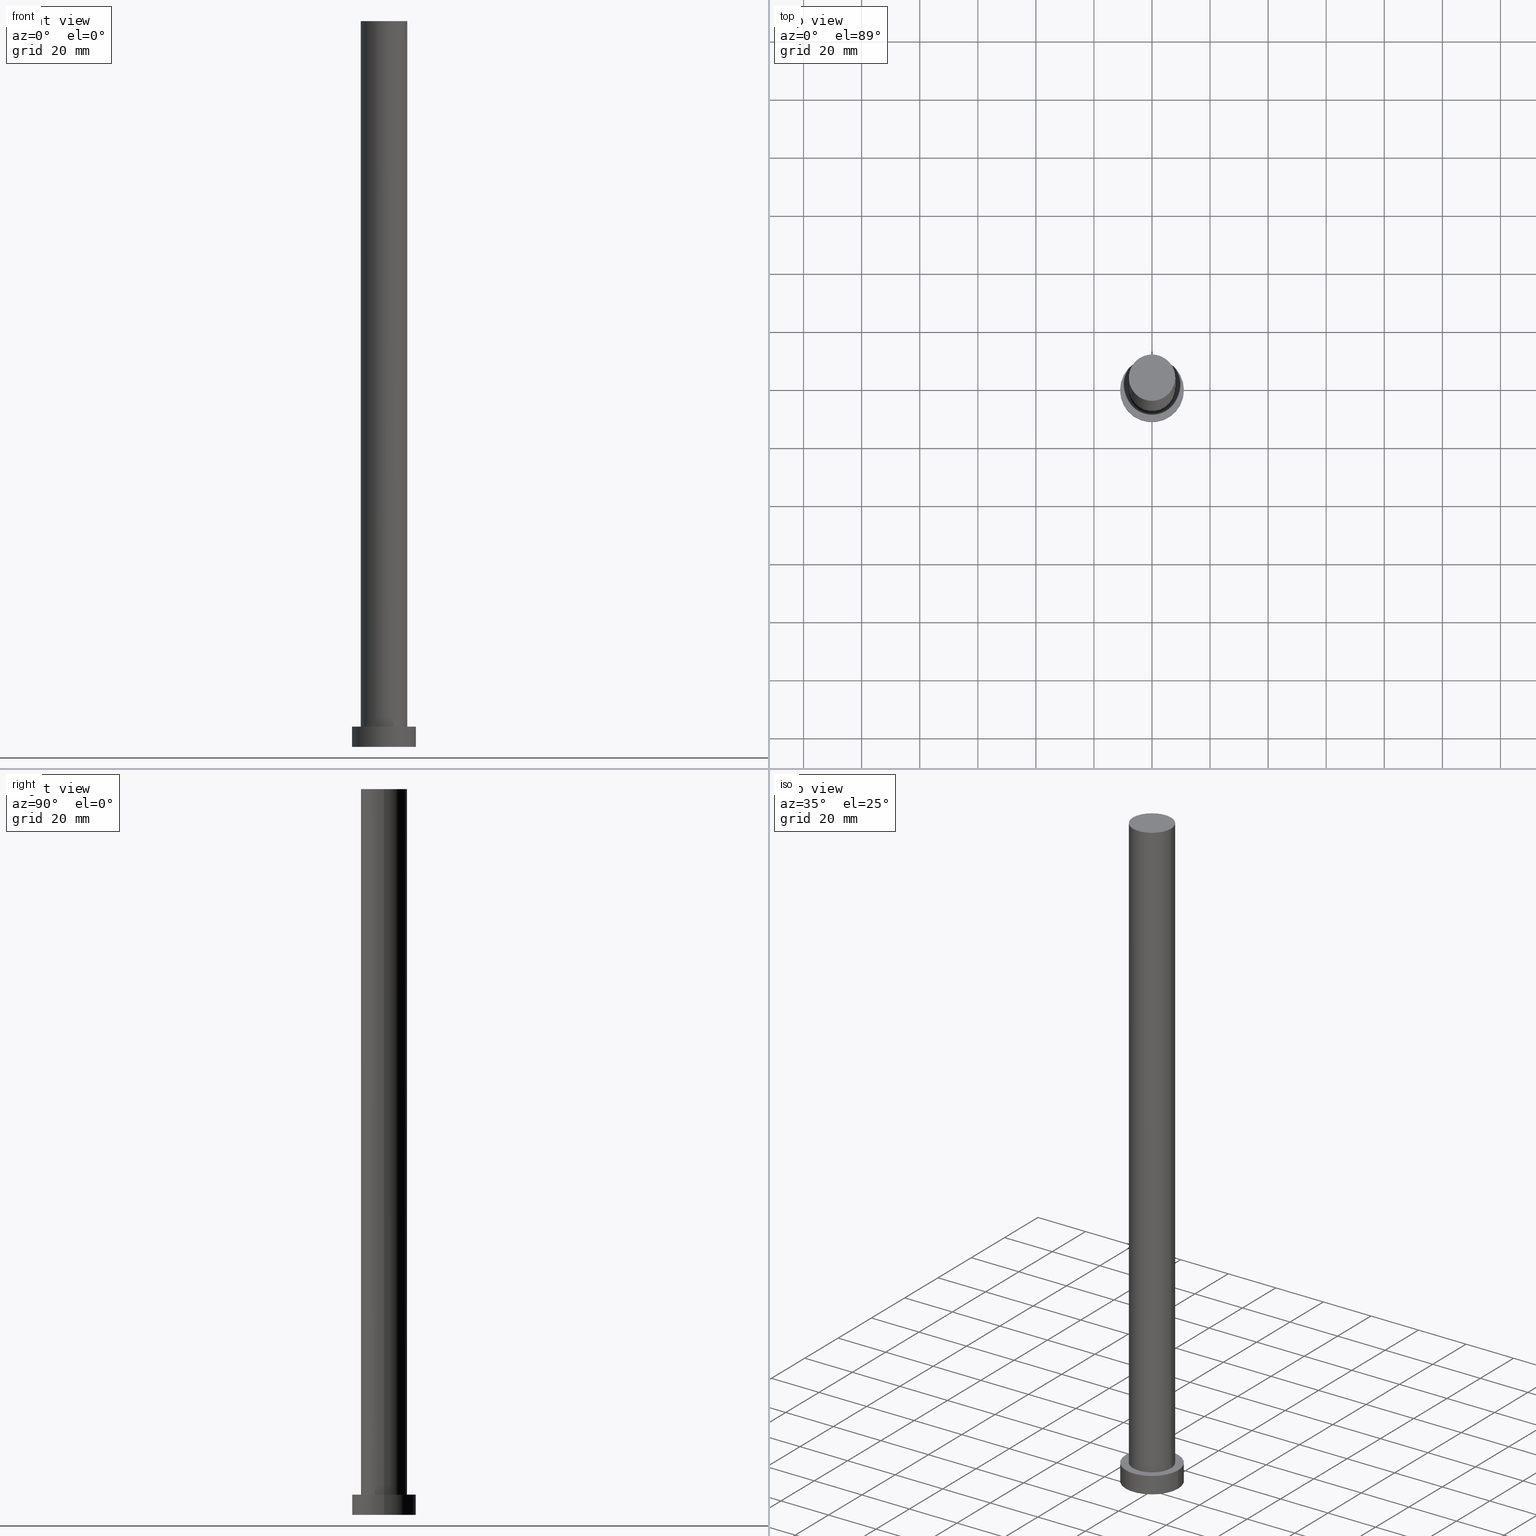
[diagram: canonical four-view strip — front | top / right | iso, engineering-drawing reading convention]
A machine part, canonical four-view strip (front | top / right | iso — engineering-drawing reading convention). The complete STEP part file that produces these views, byte-faithful:
ISO-10303-21;
HEADER;
FILE_DESCRIPTION (( 'STEP AP203' ),
    '1' );
FILE_NAME ('07d5.STEP',
    '2023-02-13T09:15:05',
    ( '' ),
    ( '' ),
    'SwSTEP 2.0',
    'SolidWorks 2019',
    '' );
FILE_SCHEMA (( 'CONFIG_CONTROL_DESIGN' ));
ENDSEC;

DATA;
#1 = PERSON_AND_ORGANIZATION ( #143, #175 ) ;
#2 = EDGE_CURVE ( 'NONE', #45, #119, #109, .T. ) ;
#3 = ORIENTED_EDGE ( 'NONE', *, *, #113, .T. ) ;
#4 = COORDINATED_UNIVERSAL_TIME_OFFSET ( 1, 0, .AHEAD. ) ;
#5 = ORIENTED_EDGE ( 'NONE', *, *, #33, .F. ) ;
#6 = COORDINATED_UNIVERSAL_TIME_OFFSET ( 1, 0, .AHEAD. ) ;
#7 = CIRCLE ( 'NONE', #255, 11.00000000000000000 ) ;
#8 = CARTESIAN_POINT ( 'NONE',  ( 0.000000000000000000, 0.000000000000000000, 0.000000000000000000 ) ) ;
#9 = CALENDAR_DATE ( 2023, 13, 2 ) ;
#10 = DIRECTION ( 'NONE',  ( 0.000000000000000000, 0.000000000000000000, 1.000000000000000000 ) ) ;
#11 = EDGE_LOOP ( 'NONE', ( #5, #38, #165, #68 ) ) ;
#12 = EDGE_CURVE ( 'NONE', #243, #119, #59, .T. ) ;
#13 = AXIS2_PLACEMENT_3D ( 'NONE', #149, #10, #29 ) ;
#14 = APPROVAL_DATE_TIME ( #56, #16 ) ;
#15 = CIRCLE ( 'NONE', #84, 11.00000000000000000 ) ;
#16 = APPROVAL ( #135, 'NEUR�EN�' ) ;
#17 = CARTESIAN_POINT ( 'NONE',  ( 8.000000000000000000, 9.797174393178825657E-16, 7.000000000000000000 ) ) ;
#18 = VERTEX_POINT ( 'NONE', #191 ) ;
#19 = DIRECTION ( 'NONE',  ( 0.000000000000000000, 0.000000000000000000, 1.000000000000000000 ) ) ;
#20 = DESIGN_CONTEXT ( 'detailed design', #78, 'design' ) ;
#21 = VERTEX_POINT ( 'NONE', #207 ) ;
#22 = PRODUCT_DEFINITION_FORMATION_WITH_SPECIFIED_SOURCE ( 'LIBOVOLN�', '', #85, .NOT_KNOWN. ) ;
#23 = CARTESIAN_POINT ( 'NONE',  ( -8.000000000000000000, 0.000000000000000000, 250.0000000000000000 ) ) ;
#24 = ORIENTED_EDGE ( 'NONE', *, *, #36, .T. ) ;
#25 = CYLINDRICAL_SURFACE ( 'NONE', #116, 8.000000000000000000 ) ;
#26 = DATE_AND_TIME ( #242, #152 ) ;
#27 = VERTEX_POINT ( 'NONE', #224 ) ;
#28 = EDGE_LOOP ( 'NONE', ( #3, #134 ) ) ;
#29 = DIRECTION ( 'NONE',  ( 1.000000000000000000, 0.000000000000000000, -0.000000000000000000 ) ) ;
#30 = AXIS2_PLACEMENT_3D ( 'NONE', #31, #51, #226 ) ;
#31 = CARTESIAN_POINT ( 'NONE',  ( 0.000000000000000000, 0.000000000000000000, 0.000000000000000000 ) ) ;
#32 = ORIENTED_EDGE ( 'NONE', *, *, #178, .F. ) ;
#33 = EDGE_CURVE ( 'NONE', #27, #45, #126, .T. ) ;
#34 = APPROVAL ( #221, 'NEUR�EN�' ) ;
#35 = DIRECTION ( 'NONE',  ( -0.000000000000000000, -0.000000000000000000, -1.000000000000000000 ) ) ;
#36 = EDGE_CURVE ( 'NONE', #45, #27, #15, .T. ) ;
#37 = DIRECTION ( 'NONE',  ( 0.000000000000000000, 0.000000000000000000, 1.000000000000000000 ) ) ;
#38 = ORIENTED_EDGE ( 'NONE', *, *, #131, .T. ) ;
#39 = CARTESIAN_POINT ( 'NONE',  ( 0.000000000000000000, 0.000000000000000000, 250.0000000000000000 ) ) ;
#40 = FACE_OUTER_BOUND ( 'NONE', #200, .T. ) ;
#41 = ORIENTED_EDGE ( 'NONE', *, *, #2, .T. ) ;
#42 = FACE_OUTER_BOUND ( 'NONE', #167, .T. ) ;
#43 = ADVANCED_FACE ( 'NONE', ( #171 ), #148, .F. ) ;
#44 = CARTESIAN_POINT ( 'NONE',  ( 11.00000000000000000, 1.347111479062088405E-15, 0.000000000000000000 ) ) ;
#45 = VERTEX_POINT ( 'NONE', #92 ) ;
#46 = AXIS2_PLACEMENT_3D ( 'NONE', #238, #236, #64 ) ;
#47 = DIRECTION ( 'NONE',  ( 0.000000000000000000, 0.000000000000000000, 1.000000000000000000 ) ) ;
#48 = PERSON_AND_ORGANIZATION ( #143, #175 ) ;
#49 = DIRECTION ( 'NONE',  ( 1.000000000000000000, 0.000000000000000000, 0.000000000000000000 ) ) ;
#50 = APPLICATION_CONTEXT ( 'configuration controlled 3d designs of mechanical parts and assemblies' ) ;
#51 = DIRECTION ( 'NONE',  ( 0.000000000000000000, 0.000000000000000000, 1.000000000000000000 ) ) ;
#52 = EDGE_LOOP ( 'NONE', ( #107, #173, #41, #94 ) ) ;
#53 = PERSON_AND_ORGANIZATION_ROLE ( 'creator' ) ;
#54 = ADVANCED_FACE ( 'NONE', ( #75 ), #151, .T. ) ;
#55 = VECTOR ( 'NONE', #35, 1000.000000000000000 ) ;
#56 = DATE_AND_TIME ( #137, #204 ) ;
#57 = CC_DESIGN_DATE_AND_TIME_ASSIGNMENT ( #231, #76, ( #201 ) ) ;
#58 = DIRECTION ( 'NONE',  ( -0.000000000000000000, -0.000000000000000000, -1.000000000000000000 ) ) ;
#59 = CIRCLE ( 'NONE', #234, 11.00000000000000000 ) ;
#60 = DIRECTION ( 'NONE',  ( -1.000000000000000000, 0.000000000000000000, 0.000000000000000000 ) ) ;
#61 = DIRECTION ( 'NONE',  ( 1.000000000000000000, 0.000000000000000000, -0.000000000000000000 ) ) ;
#62 = DIRECTION ( 'NONE',  ( 1.000000000000000000, 0.000000000000000000, 0.000000000000000000 ) ) ;
#63 = APPROVAL_PERSON_ORGANIZATION ( #189, #34, #164 ) ;
#64 = DIRECTION ( 'NONE',  ( -1.000000000000000000, 0.000000000000000000, 0.000000000000000000 ) ) ;
#65 = PRODUCT_DEFINITION ( 'NEZN�M�', '', #22, #20 ) ;
#66 = APPLICATION_PROTOCOL_DEFINITION ( 'international standard', 'config_control_design', 1994, #78 ) ;
#67 = PERSON_AND_ORGANIZATION_ROLE ( 'design_supplier' ) ;
#68 = ORIENTED_EDGE ( 'NONE', *, *, #2, .F. ) ;
#69 = CC_DESIGN_PERSON_AND_ORGANIZATION_ASSIGNMENT ( #208, #106, ( #85 ) ) ;
#70 = APPROVAL_PERSON_ORGANIZATION ( #246, #115, #172 ) ;
#71 = DATE_TIME_ROLE ( 'creation_date' ) ;
#72 = ORIENTED_EDGE ( 'NONE', *, *, #158, .F. ) ;
#73 =( LENGTH_UNIT ( ) NAMED_UNIT ( * ) SI_UNIT ( .MILLI., .METRE. ) );
#74 = PERSON_AND_ORGANIZATION_ROLE ( 'classification_officer' ) ;
#75 = FACE_OUTER_BOUND ( 'NONE', #11, .T. ) ;
#76 = DATE_TIME_ROLE ( 'classification_date' ) ;
#77 = SHAPE_DEFINITION_REPRESENTATION ( #124, #227 ) ;
#78 = APPLICATION_CONTEXT ( 'configuration controlled 3d designs of mechanical parts and assemblies' ) ;
#79 = COORDINATED_UNIVERSAL_TIME_OFFSET ( 1, 0, .AHEAD. ) ;
#80 = AXIS2_PLACEMENT_3D ( 'NONE', #144, #254, #62 ) ;
#81 = CARTESIAN_POINT ( 'NONE',  ( 0.000000000000000000, 0.000000000000000000, 7.000000000000000000 ) ) ;
#82 = LOCAL_TIME ( 10, 15, 5.000000000000000000, #102 ) ;
#83 = DIRECTION ( 'NONE',  ( -0.000000000000000000, -0.000000000000000000, -1.000000000000000000 ) ) ;
#84 = AXIS2_PLACEMENT_3D ( 'NONE', #90, #245, #210 ) ;
#85 = PRODUCT ( '07d5', '07d5', '', ( #130 ) ) ;
#86 = FACE_OUTER_BOUND ( 'NONE', #28, .T. ) ;
#87 = CC_DESIGN_DATE_AND_TIME_ASSIGNMENT ( #127, #71, ( #65 ) ) ;
#88 = DIRECTION ( 'NONE',  ( -0.000000000000000000, -0.000000000000000000, -1.000000000000000000 ) ) ;
#89 = DIRECTION ( 'NONE',  ( 0.000000000000000000, 0.000000000000000000, 1.000000000000000000 ) ) ;
#90 = CARTESIAN_POINT ( 'NONE',  ( 0.000000000000000000, 0.000000000000000000, 7.000000000000000000 ) ) ;
#91 = APPROVAL_STATUS ( 'not_yet_approved' ) ;
#92 = CARTESIAN_POINT ( 'NONE',  ( -11.00000000000000000, 0.000000000000000000, 7.000000000000000000 ) ) ;
#93 = PRODUCT_RELATED_PRODUCT_CATEGORY ( 'detail', '', ( #85 ) ) ;
#94 = ORIENTED_EDGE ( 'NONE', *, *, #158, .T. ) ;
#95 = APPROVAL_ROLE ( '' ) ;
#96 = CIRCLE ( 'NONE', #156, 8.000000000000000000 ) ;
#97 = DIRECTION ( 'NONE',  ( 1.000000000000000000, 0.000000000000000000, 0.000000000000000000 ) ) ;
#98 = CARTESIAN_POINT ( 'NONE',  ( 0.000000000000000000, 0.000000000000000000, 0.000000000000000000 ) ) ;
#99 = DIRECTION ( 'NONE',  ( 1.000000000000000000, 0.000000000000000000, 0.000000000000000000 ) ) ;
#100 = VERTEX_POINT ( 'NONE', #122 ) ;
#101 = DIRECTION ( 'NONE',  ( 1.000000000000000000, 0.000000000000000000, 0.000000000000000000 ) ) ;
#102 = COORDINATED_UNIVERSAL_TIME_OFFSET ( 1, 0, .AHEAD. ) ;
#103 = AXIS2_PLACEMENT_3D ( 'NONE', #230, #219, #117 ) ;
#104 = PERSON_AND_ORGANIZATION ( #143, #175 ) ;
#105 = EDGE_LOOP ( 'NONE', ( #32, #241, #129, #252 ) ) ;
#106 = PERSON_AND_ORGANIZATION_ROLE ( 'design_owner' ) ;
#107 = ORIENTED_EDGE ( 'NONE', *, *, #131, .F. ) ;
#108 = PLANE ( 'NONE',  #248 ) ;
#109 = LINE ( 'NONE', #186, #214 ) ;
#110 = AXIS2_PLACEMENT_3D ( 'NONE', #251, #120, #61 ) ;
#111 = CALENDAR_DATE ( 2023, 13, 2 ) ;
#112 = ORIENTED_EDGE ( 'NONE', *, *, #178, .T. ) ;
#113 = EDGE_CURVE ( 'NONE', #21, #18, #253, .T. ) ;
#114 = CC_DESIGN_APPROVAL ( #115, ( #22 ) ) ;
#115 = APPROVAL ( #91, 'NEUR�EN�' ) ;
#116 = AXIS2_PLACEMENT_3D ( 'NONE', #39, #83, #215 ) ;
#117 = DIRECTION ( 'NONE',  ( -1.000000000000000000, 0.000000000000000000, 0.000000000000000000 ) ) ;
#118 = CARTESIAN_POINT ( 'NONE',  ( 11.00000000000000000, 1.347111479062088405E-15, 7.000000000000000000 ) ) ;
#119 = VERTEX_POINT ( 'NONE', #232 ) ;
#120 = DIRECTION ( 'NONE',  ( 0.000000000000000000, 0.000000000000000000, 1.000000000000000000 ) ) ;
#121 = AXIS2_PLACEMENT_3D ( 'NONE', #235, #203, #60 ) ;
#122 = CARTESIAN_POINT ( 'NONE',  ( -8.000000000000000000, 0.000000000000000000, 7.000000000000000000 ) ) ;
#123 = LINE ( 'NONE', #118, #229 ) ;
#124 = PRODUCT_DEFINITION_SHAPE ( 'NONE', 'NONE',  #65 ) ;
#125 = DATE_AND_TIME ( #111, #209 ) ;
#126 = CIRCLE ( 'NONE', #133, 11.00000000000000000 ) ;
#127 = DATE_AND_TIME ( #9, #179 ) ;
#128 = DIRECTION ( 'NONE',  ( 1.000000000000000000, 0.000000000000000000, 0.000000000000000000 ) ) ;
#129 = ORIENTED_EDGE ( 'NONE', *, *, #233, .T. ) ;
#130 = MECHANICAL_CONTEXT ( 'NONE', #50, 'mechanical' ) ;
#131 = EDGE_CURVE ( 'NONE', #27, #243, #123, .T. ) ;
#132 = DIRECTION ( 'NONE',  ( 0.000000000000000000, 0.000000000000000000, 1.000000000000000000 ) ) ;
#133 = AXIS2_PLACEMENT_3D ( 'NONE', #188, #132, #49 ) ;
#134 = ORIENTED_EDGE ( 'NONE', *, *, #169, .T. ) ;
#135 = APPROVAL_STATUS ( 'not_yet_approved' ) ;
#136 = ADVANCED_FACE ( 'NONE', ( #40 ), #176, .T. ) ;
#137 = CALENDAR_DATE ( 2023, 13, 2 ) ;
#138 = ADVANCED_FACE ( 'NONE', ( #250 ), #25, .T. ) ;
#139 = CC_DESIGN_APPROVAL ( #34, ( #65 ) ) ;
#140 = DIRECTION ( 'NONE',  ( 0.000000000000000000, 0.000000000000000000, 1.000000000000000000 ) ) ;
#141 = ORIENTED_EDGE ( 'NONE', *, *, #33, .T. ) ;
#142 = CARTESIAN_POINT ( 'NONE',  ( 0.000000000000000000, 0.000000000000000000, 250.0000000000000000 ) ) ;
#143 = PERSON ( 'NEUR�EN�', 'NEUR�EN�', 'NEUR�EN�', ('NEUR�EN�'), ('NEUR�EN�'), ('NEUR�EN�') ) ;
#144 = CARTESIAN_POINT ( 'NONE',  ( 0.000000000000000000, 0.000000000000000000, 7.000000000000000000 ) ) ;
#145 =( NAMED_UNIT ( * ) SI_UNIT ( $, .STERADIAN. ) SOLID_ANGLE_UNIT ( ) );
#146 = EDGE_LOOP ( 'NONE', ( #247, #181 ) ) ;
#147 = CIRCLE ( 'NONE', #80, 8.000000000000000000 ) ;
#148 = PLANE ( 'NONE',  #13 ) ;
#149 = CARTESIAN_POINT ( 'NONE',  ( 0.000000000000000000, 0.000000000000000000, 0.000000000000000000 ) ) ;
#150 = CARTESIAN_POINT ( 'NONE',  ( 0.000000000000000000, 0.000000000000000000, 250.0000000000000000 ) ) ;
#151 = CYLINDRICAL_SURFACE ( 'NONE', #103, 11.00000000000000000 ) ;
#152 = LOCAL_TIME ( 10, 15, 5.000000000000000000, #170 ) ;
#153 = CALENDAR_DATE ( 2023, 13, 2 ) ;
#154 = CC_DESIGN_PERSON_AND_ORGANIZATION_ASSIGNMENT ( #1, #74, ( #201 ) ) ;
#155 = VECTOR ( 'NONE', #211, 1000.000000000000000 ) ;
#156 = AXIS2_PLACEMENT_3D ( 'NONE', #161, #180, #101 ) ;
#157 = PERSON_AND_ORGANIZATION ( #143, #175 ) ;
#158 = EDGE_CURVE ( 'NONE', #119, #243, #7, .T. ) ;
#159 = CLOSED_SHELL ( 'NONE', ( #136, #54, #194, #216, #43, #138, #240 ) ) ;
#160 = DIRECTION ( 'NONE',  ( 1.000000000000000000, 0.000000000000000000, 0.000000000000000000 ) ) ;
#161 = CARTESIAN_POINT ( 'NONE',  ( 0.000000000000000000, 0.000000000000000000, 250.0000000000000000 ) ) ;
#162 = FACE_OUTER_BOUND ( 'NONE', #52, .T. ) ;
#163 = LINE ( 'NONE', #177, #55 ) ;
#164 = APPROVAL_ROLE ( '' ) ;
#165 = ORIENTED_EDGE ( 'NONE', *, *, #12, .T. ) ;
#166 = PERSON_AND_ORGANIZATION ( #143, #175 ) ;
#167 = EDGE_LOOP ( 'NONE', ( #24, #141 ) ) ;
#168 =( GEOMETRIC_REPRESENTATION_CONTEXT ( 3 ) GLOBAL_UNCERTAINTY_ASSIGNED_CONTEXT ( ( #182 ) ) GLOBAL_UNIT_ASSIGNED_CONTEXT ( ( #73, #206, #145 ) ) REPRESENTATION_CONTEXT ( 'NONE', 'WORKASPACE' ) );
#169 = EDGE_CURVE ( 'NONE', #18, #21, #96, .T. ) ;
#170 = COORDINATED_UNIVERSAL_TIME_OFFSET ( 1, 0, .AHEAD. ) ;
#171 = FACE_OUTER_BOUND ( 'NONE', #193, .T. ) ;
#172 = APPROVAL_ROLE ( '' ) ;
#173 = ORIENTED_EDGE ( 'NONE', *, *, #36, .F. ) ;
#174 = APPROVAL_PERSON_ORGANIZATION ( #157, #16, #95 ) ;
#175 = ORGANIZATION ( 'NEUR�EN�', 'NEUR�EN�', '' ) ;
#176 = CYLINDRICAL_SURFACE ( 'NONE', #121, 8.000000000000000000 ) ;
#177 = CARTESIAN_POINT ( 'NONE',  ( 8.000000000000000000, 9.797174393178825657E-16, 250.0000000000000000 ) ) ;
#178 = EDGE_CURVE ( 'NONE', #18, #205, #163, .T. ) ;
#179 = LOCAL_TIME ( 10, 15, 5.000000000000000000, #4 ) ;
#180 = DIRECTION ( 'NONE',  ( 0.000000000000000000, 0.000000000000000000, 1.000000000000000000 ) ) ;
#181 = ORIENTED_EDGE ( 'NONE', *, *, #213, .F. ) ;
#182 = UNCERTAINTY_MEASURE_WITH_UNIT (LENGTH_MEASURE( 1.000000000000000082E-05 ), #73, 'distance_accuracy_value', 'NONE');
#183 = CC_DESIGN_PERSON_AND_ORGANIZATION_ASSIGNMENT ( #48, #53, ( #22 ) ) ;
#184 = CC_DESIGN_SECURITY_CLASSIFICATION ( #201, ( #22 ) ) ;
#185 = SECURITY_CLASSIFICATION_LEVEL ( 'unclassified' ) ;
#186 = CARTESIAN_POINT ( 'NONE',  ( -11.00000000000000000, 0.000000000000000000, 7.000000000000000000 ) ) ;
#187 = PERSON_AND_ORGANIZATION_ROLE ( 'creator' ) ;
#188 = CARTESIAN_POINT ( 'NONE',  ( 0.000000000000000000, 0.000000000000000000, 7.000000000000000000 ) ) ;
#189 = PERSON_AND_ORGANIZATION ( #143, #175 ) ;
#190 = AXIS2_PLACEMENT_3D ( 'NONE', #142, #19, #99 ) ;
#191 = CARTESIAN_POINT ( 'NONE',  ( 8.000000000000000000, 9.797174393178825657E-16, 250.0000000000000000 ) ) ;
#192 = APPROVAL_DATE_TIME ( #125, #34 ) ;
#193 = EDGE_LOOP ( 'NONE', ( #72, #218 ) ) ;
#194 = ADVANCED_FACE ( 'NONE', ( #162 ), #198, .T. ) ;
#195 = CIRCLE ( 'NONE', #237, 8.000000000000000000 ) ;
#196 = CC_DESIGN_APPROVAL ( #16, ( #201 ) ) ;
#197 = CC_DESIGN_PERSON_AND_ORGANIZATION_ASSIGNMENT ( #104, #67, ( #22 ) ) ;
#198 = CYLINDRICAL_SURFACE ( 'NONE', #46, 11.00000000000000000 ) ;
#199 = ORIENTED_EDGE ( 'NONE', *, *, #169, .F. ) ;
#200 = EDGE_LOOP ( 'NONE', ( #199, #112, #223, #222 ) ) ;
#201 = SECURITY_CLASSIFICATION ( '', '', #185 ) ;
#202 = LINE ( 'NONE', #23, #155 ) ;
#203 = DIRECTION ( 'NONE',  ( -0.000000000000000000, -0.000000000000000000, -1.000000000000000000 ) ) ;
#204 = LOCAL_TIME ( 10, 15, 5.000000000000000000, #79 ) ;
#205 = VERTEX_POINT ( 'NONE', #17 ) ;
#206 =( NAMED_UNIT ( * ) PLANE_ANGLE_UNIT ( ) SI_UNIT ( $, .RADIAN. ) );
#207 = CARTESIAN_POINT ( 'NONE',  ( -8.000000000000000000, 0.000000000000000000, 250.0000000000000000 ) ) ;
#208 = PERSON_AND_ORGANIZATION ( #143, #175 ) ;
#209 = LOCAL_TIME ( 10, 15, 5.000000000000000000, #6 ) ;
#210 = DIRECTION ( 'NONE',  ( 1.000000000000000000, 0.000000000000000000, 0.000000000000000000 ) ) ;
#211 = DIRECTION ( 'NONE',  ( -0.000000000000000000, -0.000000000000000000, -1.000000000000000000 ) ) ;
#212 = MANIFOLD_SOLID_BREP ( 'P�idat vysunut�m3', #159 ) ;
#213 = EDGE_CURVE ( 'NONE', #205, #100, #147, .T. ) ;
#214 = VECTOR ( 'NONE', #88, 1000.000000000000000 ) ;
#215 = DIRECTION ( 'NONE',  ( -1.000000000000000000, 0.000000000000000000, 0.000000000000000000 ) ) ;
#216 = ADVANCED_FACE ( 'NONE', ( #220, #42 ), #217, .T. ) ;
#217 = PLANE ( 'NONE',  #110 ) ;
#218 = ORIENTED_EDGE ( 'NONE', *, *, #12, .F. ) ;
#219 = DIRECTION ( 'NONE',  ( -0.000000000000000000, -0.000000000000000000, -1.000000000000000000 ) ) ;
#220 = FACE_BOUND ( 'NONE', #146, .T. ) ;
#221 = APPROVAL_STATUS ( 'not_yet_approved' ) ;
#222 = ORIENTED_EDGE ( 'NONE', *, *, #233, .F. ) ;
#223 = ORIENTED_EDGE ( 'NONE', *, *, #213, .T. ) ;
#224 = CARTESIAN_POINT ( 'NONE',  ( 11.00000000000000000, 1.347111479062088405E-15, 7.000000000000000000 ) ) ;
#225 = APPLICATION_PROTOCOL_DEFINITION ( 'international standard', 'config_control_design', 1994, #50 ) ;
#226 = DIRECTION ( 'NONE',  ( 1.000000000000000000, 0.000000000000000000, 0.000000000000000000 ) ) ;
#227 = ADVANCED_BREP_SHAPE_REPRESENTATION ( '07d5', ( #212, #30 ), #168 ) ;
#228 = EDGE_CURVE ( 'NONE', #100, #205, #195, .T. ) ;
#229 = VECTOR ( 'NONE', #58, 1000.000000000000000 ) ;
#230 = CARTESIAN_POINT ( 'NONE',  ( 0.000000000000000000, 0.000000000000000000, 7.000000000000000000 ) ) ;
#231 = DATE_AND_TIME ( #153, #82 ) ;
#232 = CARTESIAN_POINT ( 'NONE',  ( -11.00000000000000000, 0.000000000000000000, 0.000000000000000000 ) ) ;
#233 = EDGE_CURVE ( 'NONE', #21, #100, #202, .T. ) ;
#234 = AXIS2_PLACEMENT_3D ( 'NONE', #8, #47, #128 ) ;
#235 = CARTESIAN_POINT ( 'NONE',  ( 0.000000000000000000, 0.000000000000000000, 250.0000000000000000 ) ) ;
#236 = DIRECTION ( 'NONE',  ( -0.000000000000000000, -0.000000000000000000, -1.000000000000000000 ) ) ;
#237 = AXIS2_PLACEMENT_3D ( 'NONE', #81, #37, #160 ) ;
#238 = CARTESIAN_POINT ( 'NONE',  ( 0.000000000000000000, 0.000000000000000000, 7.000000000000000000 ) ) ;
#239 = DIRECTION ( 'NONE',  ( 1.000000000000000000, 0.000000000000000000, -0.000000000000000000 ) ) ;
#240 = ADVANCED_FACE ( 'NONE', ( #86 ), #108, .T. ) ;
#241 = ORIENTED_EDGE ( 'NONE', *, *, #113, .F. ) ;
#242 = CALENDAR_DATE ( 2023, 13, 2 ) ;
#243 = VERTEX_POINT ( 'NONE', #44 ) ;
#244 = APPROVAL_DATE_TIME ( #26, #115 ) ;
#245 = DIRECTION ( 'NONE',  ( 0.000000000000000000, 0.000000000000000000, 1.000000000000000000 ) ) ;
#246 = PERSON_AND_ORGANIZATION ( #143, #175 ) ;
#247 = ORIENTED_EDGE ( 'NONE', *, *, #228, .F. ) ;
#248 = AXIS2_PLACEMENT_3D ( 'NONE', #150, #89, #239 ) ;
#249 = CC_DESIGN_PERSON_AND_ORGANIZATION_ASSIGNMENT ( #166, #187, ( #65 ) ) ;
#250 = FACE_OUTER_BOUND ( 'NONE', #105, .T. ) ;
#251 = CARTESIAN_POINT ( 'NONE',  ( 0.000000000000000000, 0.000000000000000000, 7.000000000000000000 ) ) ;
#252 = ORIENTED_EDGE ( 'NONE', *, *, #228, .T. ) ;
#253 = CIRCLE ( 'NONE', #190, 8.000000000000000000 ) ;
#254 = DIRECTION ( 'NONE',  ( 0.000000000000000000, 0.000000000000000000, 1.000000000000000000 ) ) ;
#255 = AXIS2_PLACEMENT_3D ( 'NONE', #98, #140, #97 ) ;
ENDSEC;
END-ISO-10303-21;
